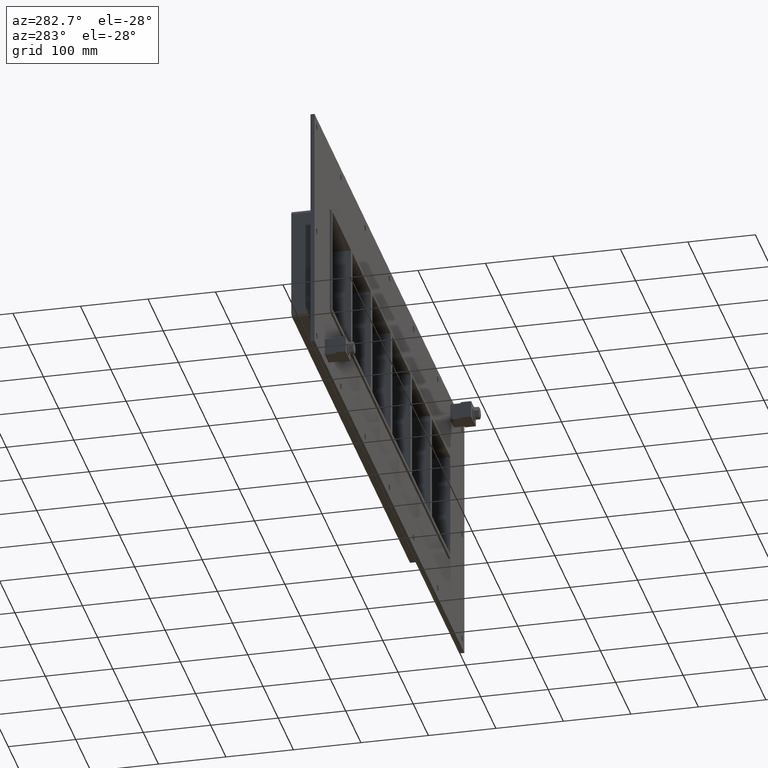
[diagram: clean part render]
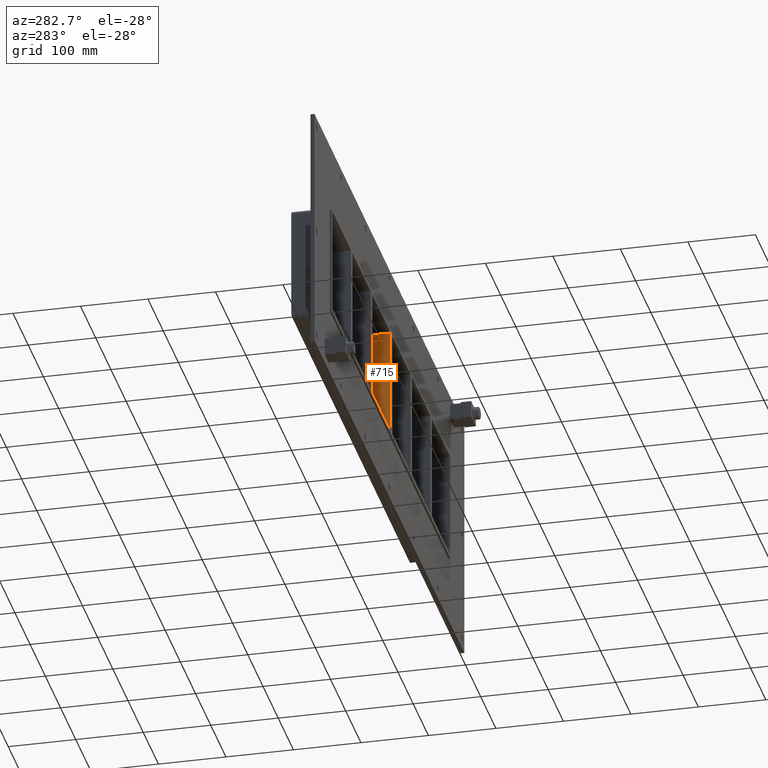
[diagram: same view with one face highlighted and labeled with its STEP entity id]
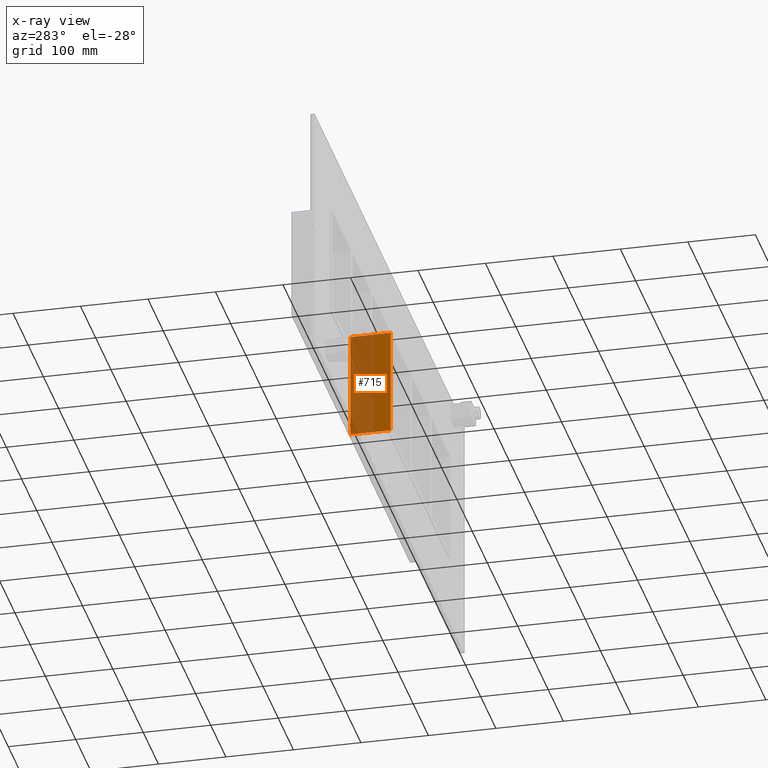
[diagram: x-ray of the same camera — body ghosted, the highlighted face saturated]
A machine part, auxiliary view. The second image highlights one B-rep face of the part: STEP entity #715.
The next image is the same camera in x-ray: the body ghosted, the highlighted face saturated — about 55% of this face is hidden behind the body in this view.
In plain terms, the highlighted planar face has unit normal (-1, 0, 0).
Its self-contained STEP definition (entity closure, byte-faithful):
#676=CARTESIAN_POINT('',(-4.999999999999218,-3.0,-79.750000000000057));
#677=DIRECTION('',(-1.0,0.0,0.0));
#678=DIRECTION('',(0.0,0.0,1.0));
#679=AXIS2_PLACEMENT_3D('',#676,#677,#678);
#680=PLANE('',#679);
#681=CARTESIAN_POINT('',(-4.999999999999218,-3.0,-79.750000000000057));
#682=VERTEX_POINT('',#681);
#683=CARTESIAN_POINT('',(-4.999999999999218,-3.0,79.749999999999972));
#684=VERTEX_POINT('',#683);
#685=CARTESIAN_POINT('',(-4.999999999999218,-3.0,-79.750000000000057));
#686=DIRECTION('',(0.0,0.0,1.0));
#687=VECTOR('',#686,159.50000000000003);
#688=LINE('',#685,#687);
#689=EDGE_CURVE('',#682,#684,#688,.T.);
#690=ORIENTED_EDGE('',*,*,#689,.T.);
#691=CARTESIAN_POINT('',(-4.999999999999218,57.0,79.749999999999972));
#692=VERTEX_POINT('',#691);
#693=CARTESIAN_POINT('',(-4.999999999999218,57.000000000000007,79.750000000000014));
#694=DIRECTION('',(0.0,-1.0,0.0));
#695=VECTOR('',#694,60.000000000000007);
#696=LINE('',#693,#695);
#697=EDGE_CURVE('',#692,#684,#696,.T.);
#698=ORIENTED_EDGE('',*,*,#697,.F.);
#699=CARTESIAN_POINT('',(-4.999999999999218,57.0,-79.750000000000057));
#700=VERTEX_POINT('',#699);
#701=CARTESIAN_POINT('',(-4.999999999999218,57.0,-79.750000000000057));
#702=DIRECTION('',(0.0,0.0,1.0));
#703=VECTOR('',#702,159.50000000000003);
#704=LINE('',#701,#703);
#705=EDGE_CURVE('',#700,#692,#704,.T.);
#706=ORIENTED_EDGE('',*,*,#705,.F.);
#707=CARTESIAN_POINT('',(-4.999999999999218,-3.0,-79.750000000000014));
#708=DIRECTION('',(0.0,1.0,0.0));
#709=VECTOR('',#708,60.000000000000007);
#710=LINE('',#707,#709);
#711=EDGE_CURVE('',#682,#700,#710,.T.);
#712=ORIENTED_EDGE('',*,*,#711,.F.);
#713=EDGE_LOOP('',(#690,#698,#706,#712));
#714=FACE_OUTER_BOUND('',#713,.T.);
#715=ADVANCED_FACE('',(#714),#680,.T.);